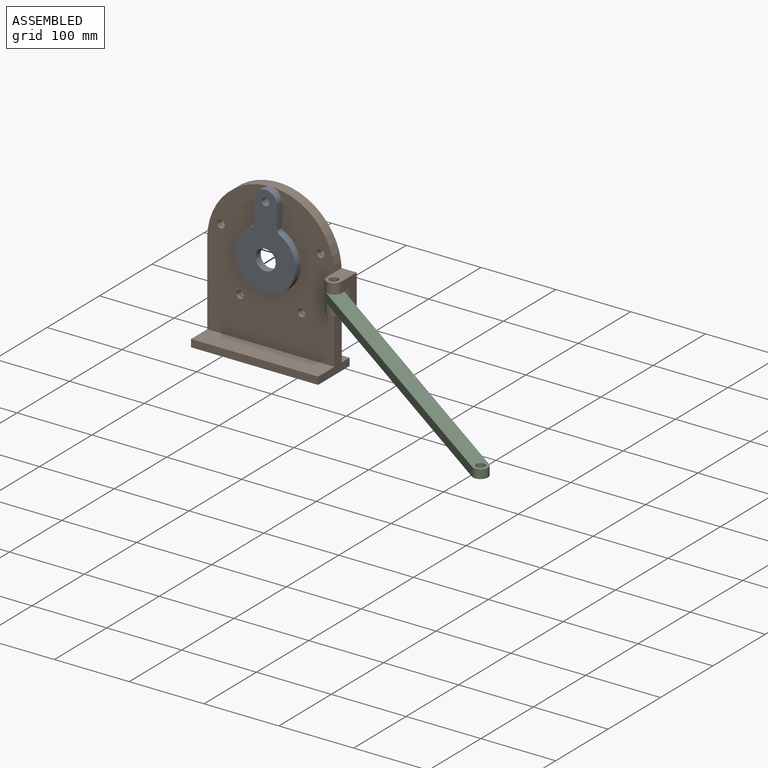
[diagram: assembled view]
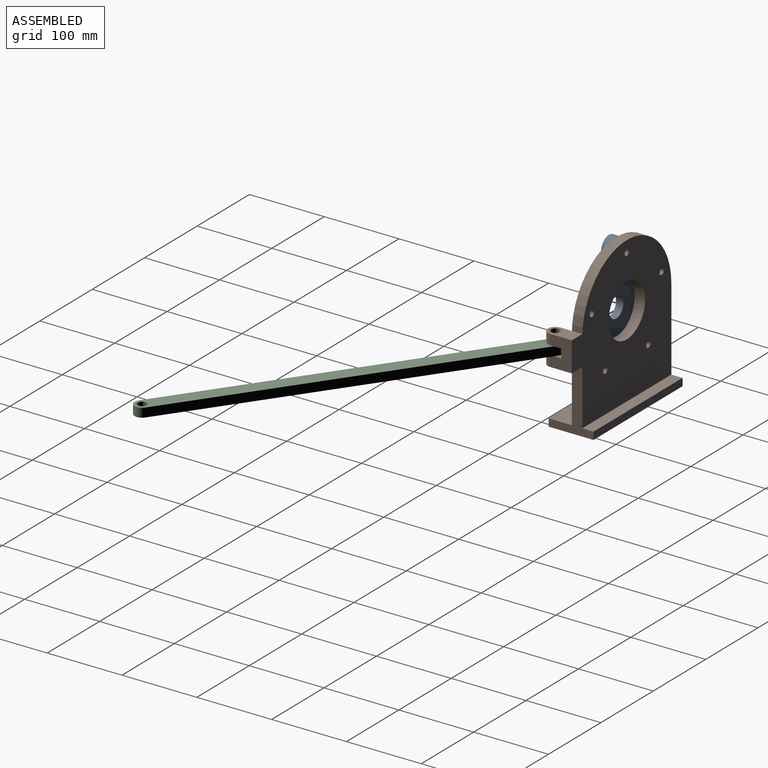
[diagram: assembled view, second angle]
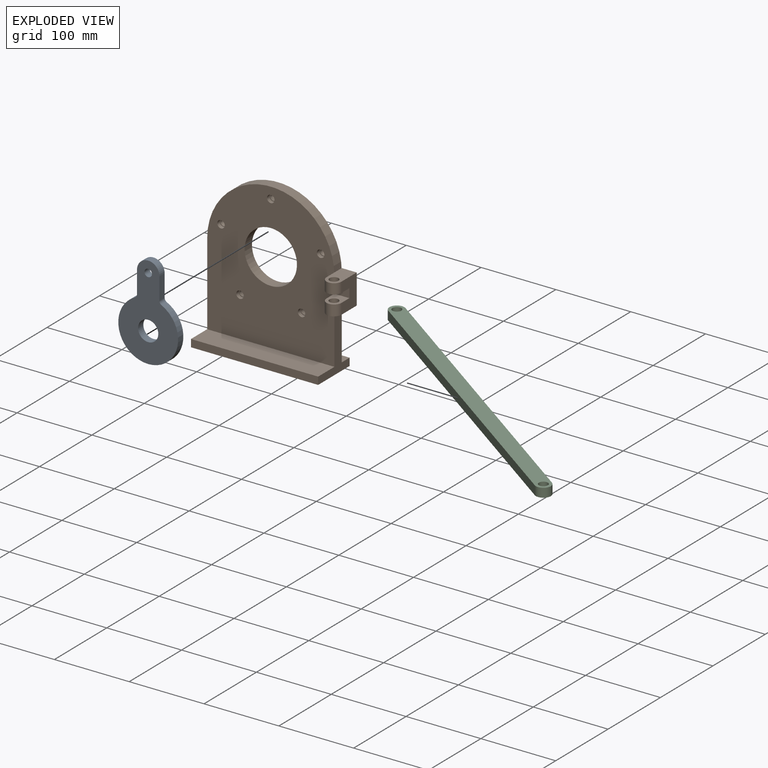
[diagram: exploded view]
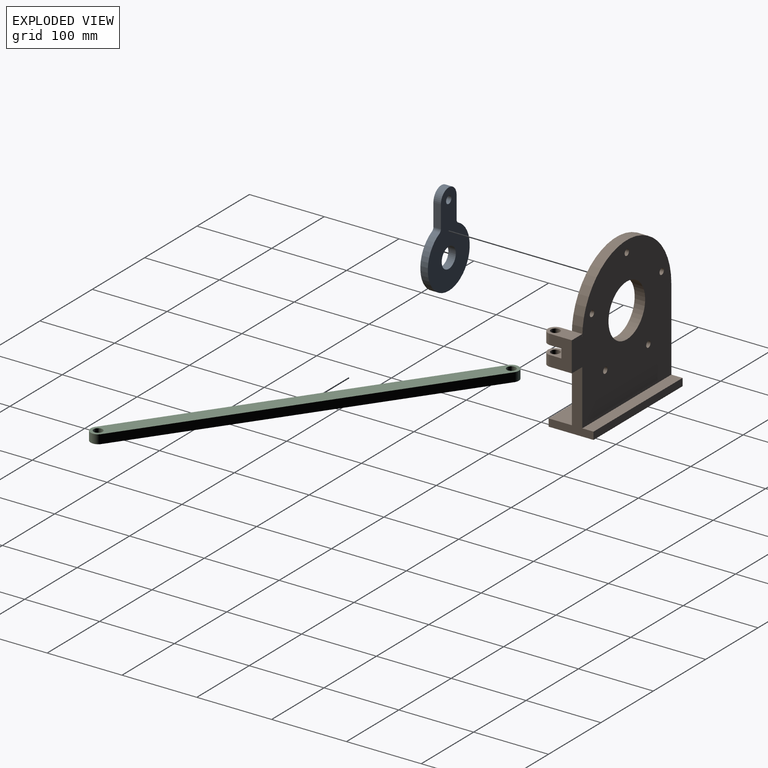
[diagram: exploded view, second angle]
ASSEMBLY  parts=3 mates=3
PART A: 10 faces, bbox 80x10x125 mm
  f0: cylinder r=40mm len=80mm, axis (0,1,0), area 2144.8mm2, adj f5,f6,f8,f9
  f1: plane 29.69x10mm, normal (1,0,0), area 296.9mm2, adj f5,f6,f7,f8
  f2: cylinder r=13.5mm len=27mm, axis (0,1,0), area 848.2mm2, adj f5,f6
  f3: cylinder r=5mm len=10mm, axis (0,1,0), area 314.2mm2, adj f5,f6
  f4: plane 29.69x10mm, normal (-1,0,0), area 296.9mm2, adj f5,f6,f7,f9
  f5: plane 125x80mm, normal (0,-1,0), area 5661.1mm2, adj f0,f1,f2,f3,f4,f7,f8,f9
  f6: plane 125x80mm, normal (0,1,0), area 5661.1mm2, adj f0,f1,f2,f3,f4,f7,f8,f9
  f7: cylinder r=15mm len=30mm, axis (0,-1,0), area 471.2mm2, adj f1,f4,f5,f6
  f8: cylinder r=5mm len=10mm, axis (0,1,0), area 55.5mm2, adj f0,f1,f5,f6
  f9: cylinder r=5mm len=10mm, axis (0,1,0), area 55.5mm2, adj f0,f4,f5,f6
PART B: 37 faces, bbox 190x60x205 mm
  f0: plane 29x13.65mm, normal (-1,0,0), area 260.8mm2, adj f2,f10,f11,f23,f31,f33
  f1: plane 40x29mm, normal (1,0,0), area 980mm2, adj f2,f10,f11,f30,f31,f32,f33,f34
  f2: cylinder r=10mm len=20mm, axis (0,0,1), area 428.9mm2, adj f0,f1,f31,f33
  f3: plane 84x60mm, normal (1,0,0), area 1636mm2, adj f10,f11,f24,f25,f26,f27,f28,f30
  f4: cylinder r=4.1mm len=9mm, axis (0,1,0), area 231.8mm2, adj f11,f17
  f5: cylinder r=4.1mm len=9mm, axis (0,1,0), area 231.8mm2, adj f11,f19
  f6: cylinder r=4.1mm len=9mm, axis (0,1,0), area 231.8mm2, adj f11,f21
  f7: cylinder r=4.1mm len=9mm, axis (0,1,0), area 231.8mm2, adj f11,f13
  f8: cylinder r=4.1mm len=9mm, axis (0,1,0), area 231.8mm2, adj f11,f15
  f9: plane 120x60mm, normal (-1,0,0), area 2140mm2, adj f10,f11,f23,f24,f25,f26,f27,f28
  f10: plane 195x190mm, normal (0,-1,0), area 26047.9mm2, adj f0,f1,f3,f9,f12,f14,f16,f18
  f11: plane 195x190mm, normal (0,1,0), area 26736.5mm2, adj f0,f1,f3,f4,f5,f6,f7,f8
  f12: cylinder r=5mm len=10mm, axis (0,-1,0), area 157.1mm2, adj f10,f13
  f13: plane 10x10mm, normal (0,-1,0), area 25.7mm2, adj f7,f12
  f14: cylinder r=5mm len=10mm, axis (0,-1,0), area 157.1mm2, adj f10,f15
  f15: plane 10x10mm, normal (0,-1,0), area 25.7mm2, adj f8,f14
  f16: cylinder r=5mm len=10mm, axis (0,-1,0), area 157.1mm2, adj f10,f17
  f17: plane 10x10mm, normal (0,-1,0), area 25.7mm2, adj f4,f16
  f18: cylinder r=5mm len=10mm, axis (0,-1,0), area 157.1mm2, adj f10,f19
  f19: plane 10x10mm, normal (0,-1,0), area 25.7mm2, adj f5,f18
  f20: cylinder r=5mm len=10mm, axis (0,-1,0), area 157.1mm2, adj f10,f21
  f21: plane 10x10mm, normal (0,-1,0), area 25.7mm2, adj f6,f20
  f22: cylinder r=35mm len=70mm, axis (0,-1,0), area 3078.8mm2, adj f10,f11
  f23: cylinder r=85mm len=170mm, axis (0,-1,0), area 3738.5mm2, adj f0,f9,f10,f11
  f24: plane 170x15mm, normal (0,0,1), area 2550mm2, adj f3,f9,f11,f27
  f25: plane 170x10mm, normal (0,-1,0), area 1700mm2, adj f3,f9,f26,f28
  f26: plane 170x60mm, normal (0,0,-1), area 10200mm2, adj f3,f9,f25,f27
  f27: plane 170x10mm, normal (0,1,0), area 1700mm2, adj f3,f9,f24,f26
  f28: plane 170x31mm, normal (0,0,1), area 5270mm2, adj f3,f9,f10,f25
  f29: plane 15x14.35mm, normal (-1,0,0), area 215.2mm2, adj f10,f30,f32,f34
  f30: plane 39x20mm, normal (0,0,-1), area 624mm2, adj f1,f3,f11,f29,f32,f35
  f31: plane 39x20mm, normal (0,0,1), area 624mm2, adj f0,f1,f2,f11,f36
  f32: cylinder r=10mm len=20mm, axis (0,0,1), area 450.7mm2, adj f1,f29,f30,f34
  f33: plane 25x20mm, normal (0,0,-1), area 344mm2, adj f0,f1,f2,f10,f36
  f34: plane 25x20mm, normal (0,0,1), area 344mm2, adj f1,f10,f29,f32,f35
  f35: cylinder r=6mm len=14.35mm, axis (0,0,1), area 540.9mm2, adj f30,f34
  f36: cylinder r=6mm len=13.65mm, axis (0,0,1), area 514.7mm2, adj f31,f33
PART C: 8 faces, bbox 500x20x12 mm
  f0: plane 480x12mm, normal (0,1,0), area 5760mm2, adj f4,f5,f6,f7
  f1: plane 480x12mm, normal (0,-1,0), area 5760mm2, adj f4,f5,f6,f7
  f2: cylinder r=6mm len=12mm, axis (0,0,1), area 452.4mm2, adj f4,f5
  f3: cylinder r=6mm len=12mm, axis (0,0,1), area 452.4mm2, adj f4,f5
  f4: plane 500x20mm, normal (0,0,-1), area 9688mm2, adj f0,f1,f2,f3,f6,f7
  f5: plane 500x20mm, normal (0,0,1), area 9688mm2, adj f0,f1,f2,f3,f6,f7
  f6: cylinder r=10mm len=20mm, axis (0,0,1), area 377mm2, adj f0,f1,f4,f5
  f7: cylinder r=10mm len=20mm, axis (0,0,1), area 377mm2, adj f0,f1,f4,f5
PLACE A t=(-0.88,0,23.91)mm
PLACE B t=(-0.88,14,23.91)mm
PLACE C rot(axis=(0,0,-1),35.5deg) t=(94.12,-15,14.26)mm
MATE revolute A.f2 <-> B.f22  axis (0,1,0) through (-0.88,0,23.91)mm
MATE parallel C.f2 <-> B.f35  axis (0,0,1) through (94.12,-15,14.26)mm
MATE revolute C.f2 <-> B.f35  axis (0,0,1) through (94.12,-15,14.26)mm
